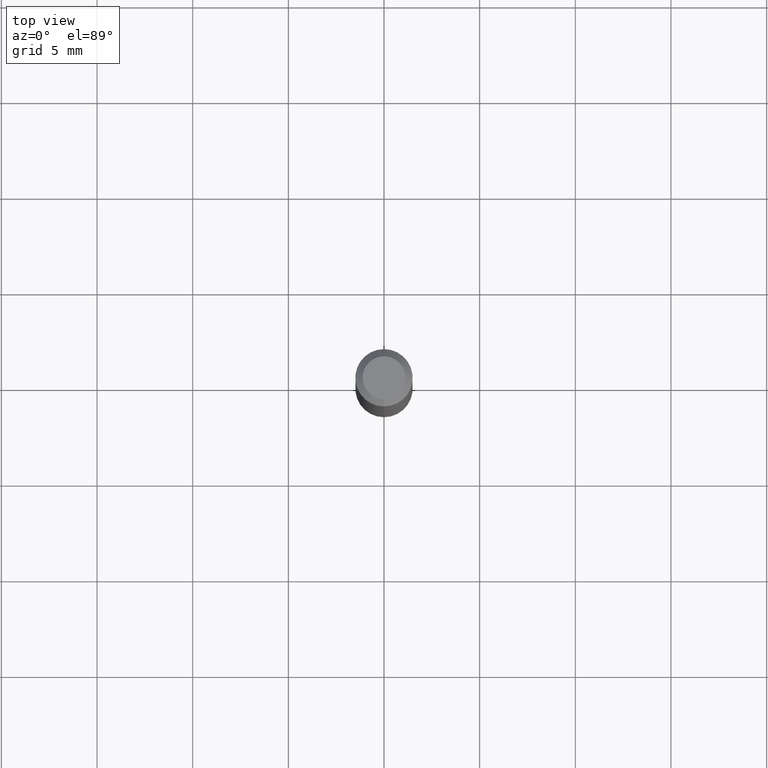
[diagram: clean part render]
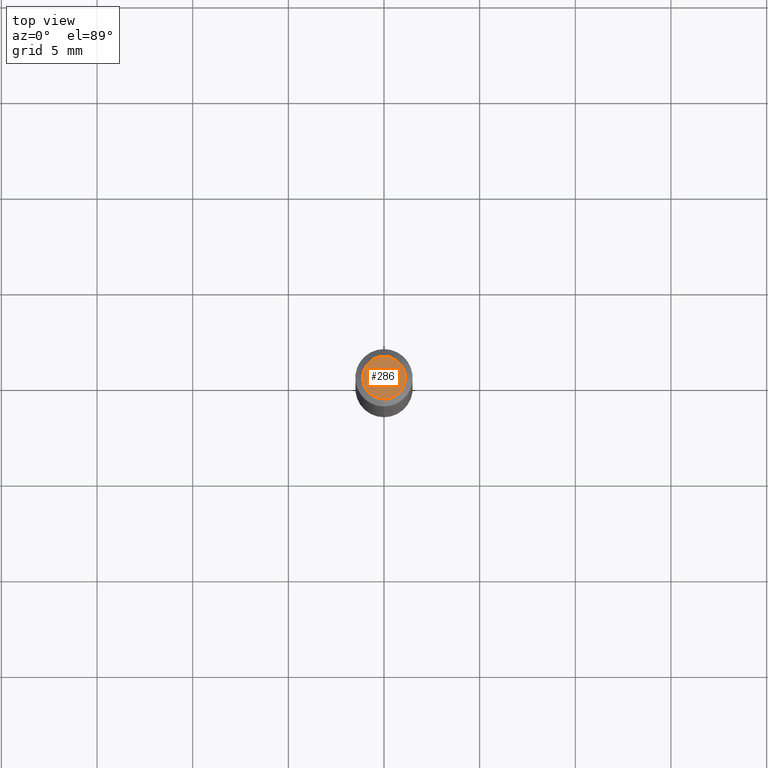
[diagram: same view with one face highlighted and labeled with its STEP entity id]
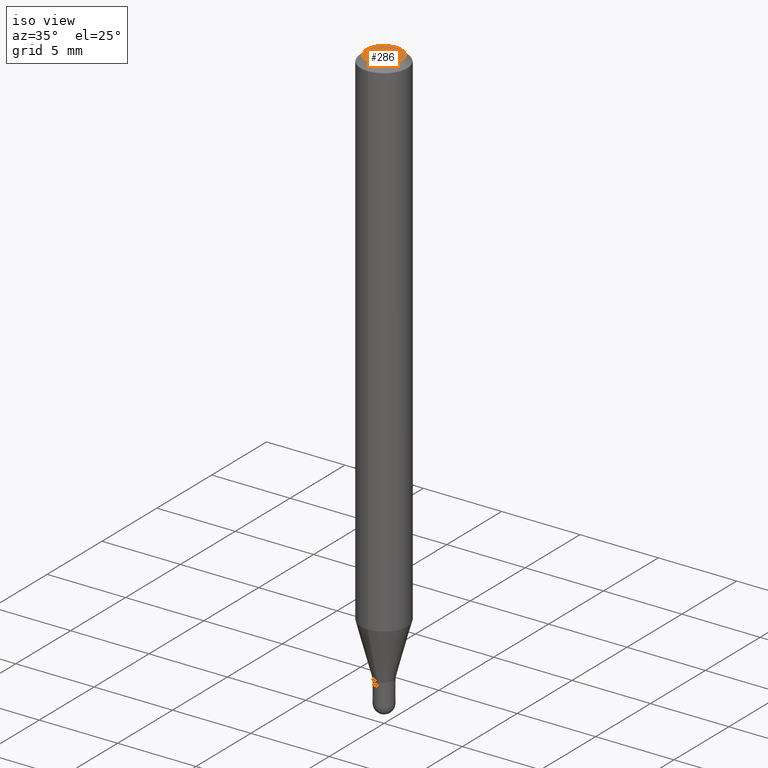
[diagram: same view with one face highlighted and labeled with its STEP entity id]
A machine part, top view. The second image highlights one B-rep face of the part: STEP entity #286.
A second angle (iso view) of the same face is appended — the face is thin or edge-on in the first view.
In plain terms, the highlighted planar face has unit normal (0, -0, -1).
Its self-contained STEP definition (entity closure, byte-faithful):
#29 = VERTEX_POINT ( 'NONE', #451 ) ;
#48 = CARTESIAN_POINT ( 'NONE',  ( 5.834381007434704374E-46, -8.330354328949451490E-32, -2.385850289343828066E-17 ) ) ;
#75 = FACE_OUTER_BOUND ( 'NONE', #391, .T. ) ;
#80 = DIRECTION ( 'NONE',  ( 6.982962677686265922E-15, 1.000000000000000000, -3.491566242088273714E-15 ) ) ;
#84 = DIRECTION ( 'NONE',  ( -2.445409518565941942E-29, 3.491566242088273714E-15, 1.000000000000000000 ) ) ;
#85 = DIRECTION ( 'NONE',  ( -2.445409518565941942E-29, 3.491566242088273714E-15, 1.000000000000000000 ) ) ;
#86 = ORIENTED_EDGE ( 'NONE', *, *, #253, .T. ) ;
#96 = CARTESIAN_POINT ( 'NONE',  ( -3.536586717851222218E-16, -0.04404999999999999888, 1.299449900705501590E-16 ) ) ;
#103 = CIRCLE ( 'NONE', #260, 0.04404999999999999888 ) ;
#133 = CIRCLE ( 'NONE', #251, 0.04404999999999999888 ) ;
#153 = AXIS2_PLACEMENT_3D ( 'NONE', #363, #322, #80 ) ;
#163 = PLANE ( 'NONE',  #153 ) ;
#180 = ORIENTED_EDGE ( 'NONE', *, *, #428, .T. ) ;
#248 = DIRECTION ( 'NONE',  ( -6.982962677686265133E-15, -1.000000000000000000, 3.491566242088273714E-15 ) ) ;
#251 = AXIS2_PLACEMENT_3D ( 'NONE', #48, #84, #248 ) ;
#253 = EDGE_CURVE ( 'NONE', #355, #29, #103, .T. ) ;
#257 = DIRECTION ( 'NONE',  ( -6.982962677686265133E-15, -1.000000000000000000, 3.491566242088273714E-15 ) ) ;
#260 = AXIS2_PLACEMENT_3D ( 'NONE', #414, #85, #257 ) ;
#286 = ADVANCED_FACE ( 'NONE', ( #75 ), #163, .F. ) ;
#322 = DIRECTION ( 'NONE',  ( 2.445409518565941942E-29, -3.491566242088273714E-15, -1.000000000000000000 ) ) ;
#355 = VERTEX_POINT ( 'NONE', #96 ) ;
#363 = CARTESIAN_POINT ( 'NONE',  ( 3.075995059520799729E-16, 0.04404999999999999888, -1.657327444107075985E-16 ) ) ;
#391 = EDGE_LOOP ( 'NONE', ( #180, #86 ) ) ;
#414 = CARTESIAN_POINT ( 'NONE',  ( 5.834381007434704374E-46, -8.330354328949451490E-32, -2.385850289343828066E-17 ) ) ;
#428 = EDGE_CURVE ( 'NONE', #29, #355, #133, .T. ) ;
#451 = CARTESIAN_POINT ( 'NONE',  ( 3.599717260347271507E-16, 0.04404999999999999888, -1.776619958574267204E-16 ) ) ;